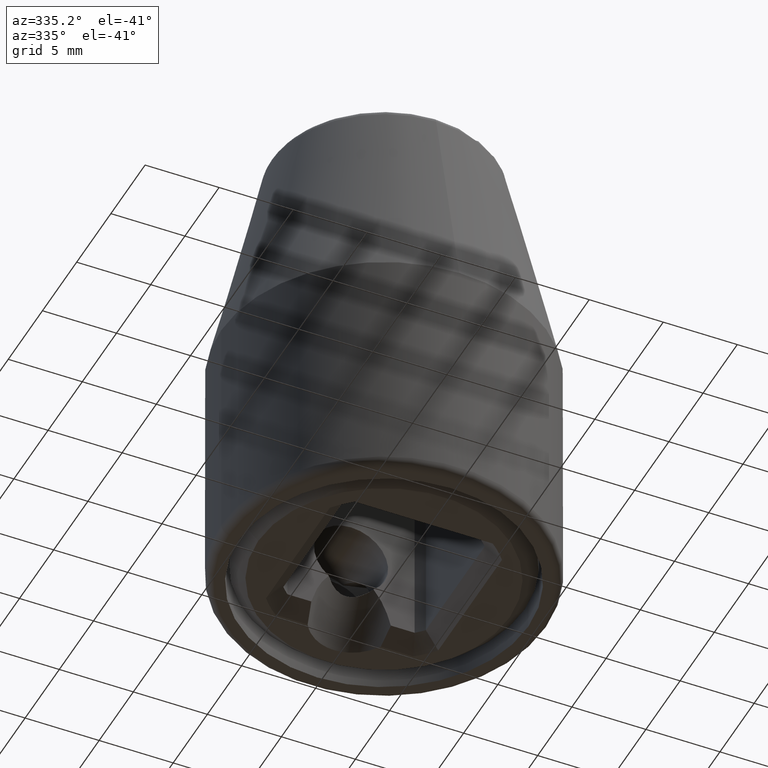
[diagram: clean part render]
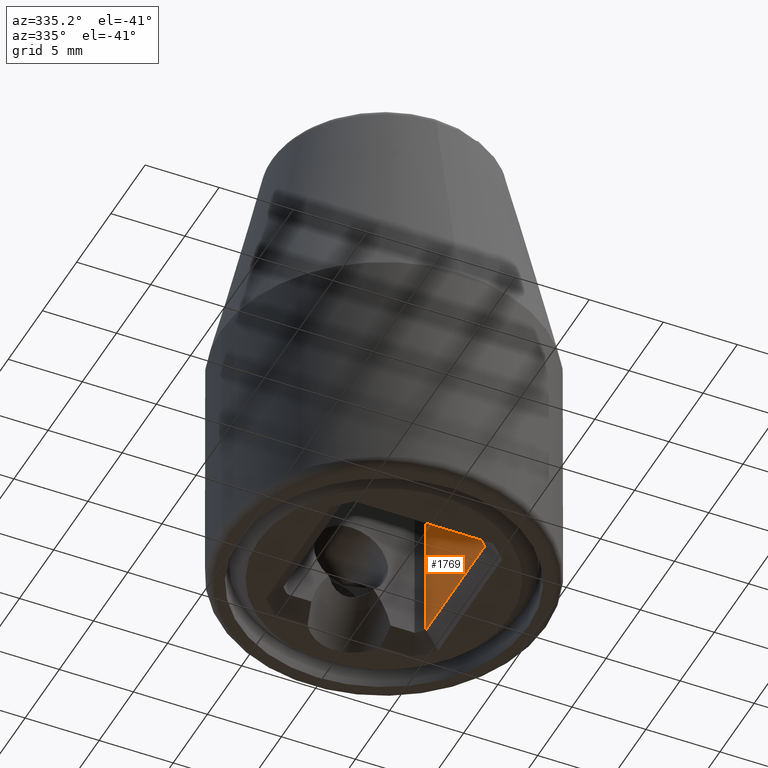
[diagram: same view with one face highlighted and labeled with its STEP entity id]
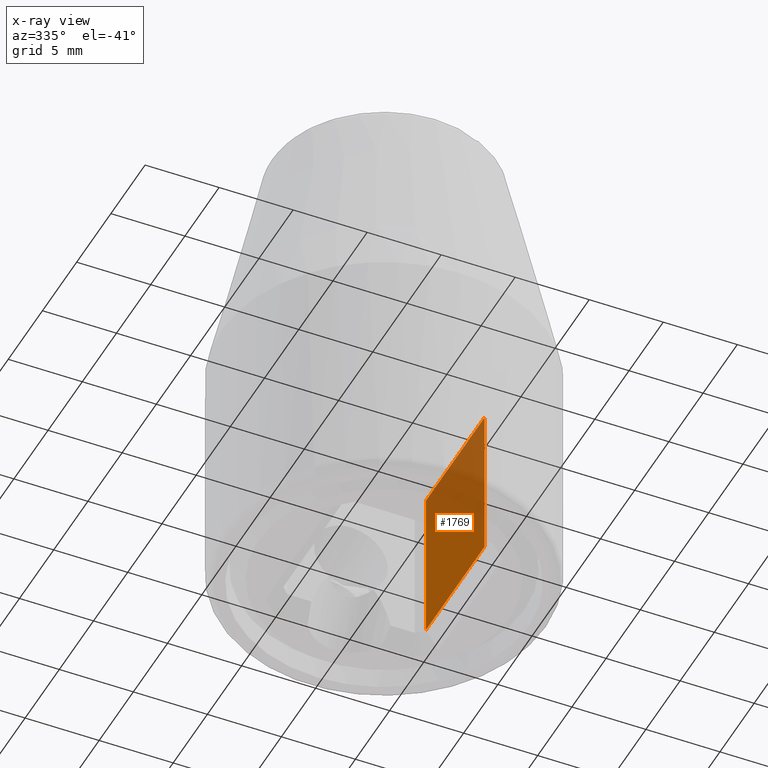
[diagram: x-ray of the same camera — body ghosted, the highlighted face saturated]
A machine part, auxiliary view. The second image highlights one B-rep face of the part: STEP entity #1769.
The next image is the same camera in x-ray: the body ghosted, the highlighted face saturated — about 54% of this face is hidden behind the body in this view.
In plain terms, the highlighted planar face has unit normal (1, 0, 0).
Its self-contained STEP definition (entity closure, byte-faithful):
#516=DIRECTION('',(0.E0,-1.E0,0.E0));
#517=VECTOR('',#516,8.588910000693E0);
#518=CARTESIAN_POINT('',(4.8125E0,4.294455000346E0,1.15E1));
#519=LINE('',#518,#517);
#575=DIRECTION('',(-4.359332084945E-8,1.E0,4.421562360870E-8));
#576=VECTOR('',#575,8.588909849888E0);
#577=CARTESIAN_POINT('',(4.812499999989E0,-4.294455000342E0,1.000000000011E0));
#578=LINE('',#577,#576);
#579=DIRECTION('',(3.565998216273E-8,1.436191915793E-8,1.E0));
#580=VECTOR('',#579,1.049999962023E1);
#581=CARTESIAN_POINT('',(4.812499625570E0,4.294454849546E0,1.000000379775E0));
#582=LINE('',#581,#580);
#588=DIRECTION('',(1.018782941608E-12,-4.102538414810E-13,1.E0));
#589=VECTOR('',#588,1.049999999999E1);
#590=CARTESIAN_POINT('',(4.812499999989E0,-4.294455000342E0,1.000000000011E0));
#591=LINE('',#590,#589);
#1116=CARTESIAN_POINT('',(4.8125E0,4.294455000346E0,1.15E1));
#1118=VERTEX_POINT('',#1116);
#1119=CARTESIAN_POINT('',(4.8125E0,-4.294455000346E0,1.15E1));
#1120=VERTEX_POINT('',#1119);
#1131=CARTESIAN_POINT('',(4.8125E0,4.294455000346E0,1.E0));
#1133=VERTEX_POINT('',#1131);
#1141=CARTESIAN_POINT('',(4.812499999989E0,-4.294455000342E0,1.000000000011E0));
#1142=VERTEX_POINT('',#1141);
#1757=CARTESIAN_POINT('',(4.8125E0,4.294455000346E0,0.E0));
#1758=DIRECTION('',(1.E0,0.E0,0.E0));
#1759=DIRECTION('',(0.E0,-1.E0,0.E0));
#1760=AXIS2_PLACEMENT_3D('',#1757,#1758,#1759);
#1761=PLANE('',#1760);
#1762=ORIENTED_EDGE('',*,*,#1751,.T.);
#1763=ORIENTED_EDGE('',*,*,#1628,.T.);
#1764=ORIENTED_EDGE('',*,*,#1650,.T.);
#1766=ORIENTED_EDGE('',*,*,#1765,.F.);
#1767=EDGE_LOOP('',(#1762,#1763,#1764,#1766));
#1768=FACE_OUTER_BOUND('',#1767,.F.);
#1769=ADVANCED_FACE('',(#1768),#1761,.F.);
#1628=EDGE_CURVE('',#1133,#1118,#582,.T.);
#1650=EDGE_CURVE('',#1118,#1120,#519,.T.);
#1751=EDGE_CURVE('',#1142,#1133,#578,.T.);
#1765=EDGE_CURVE('',#1142,#1120,#591,.T.);